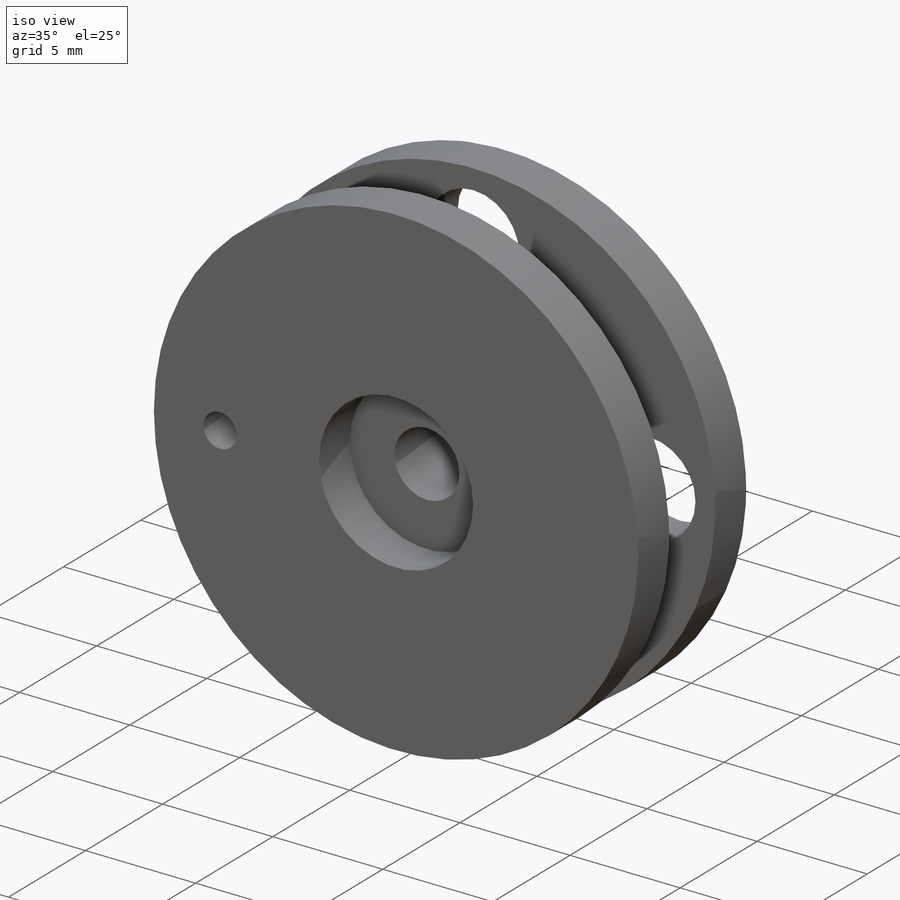
[diagram: iso view]
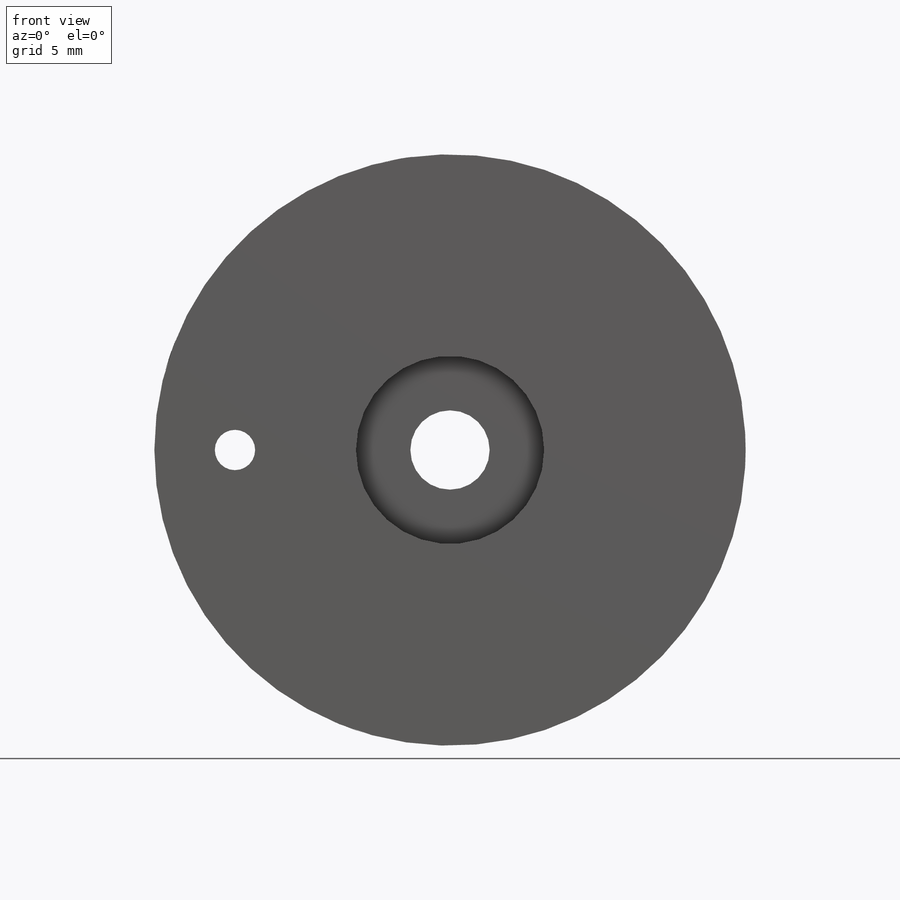
[diagram: front view]
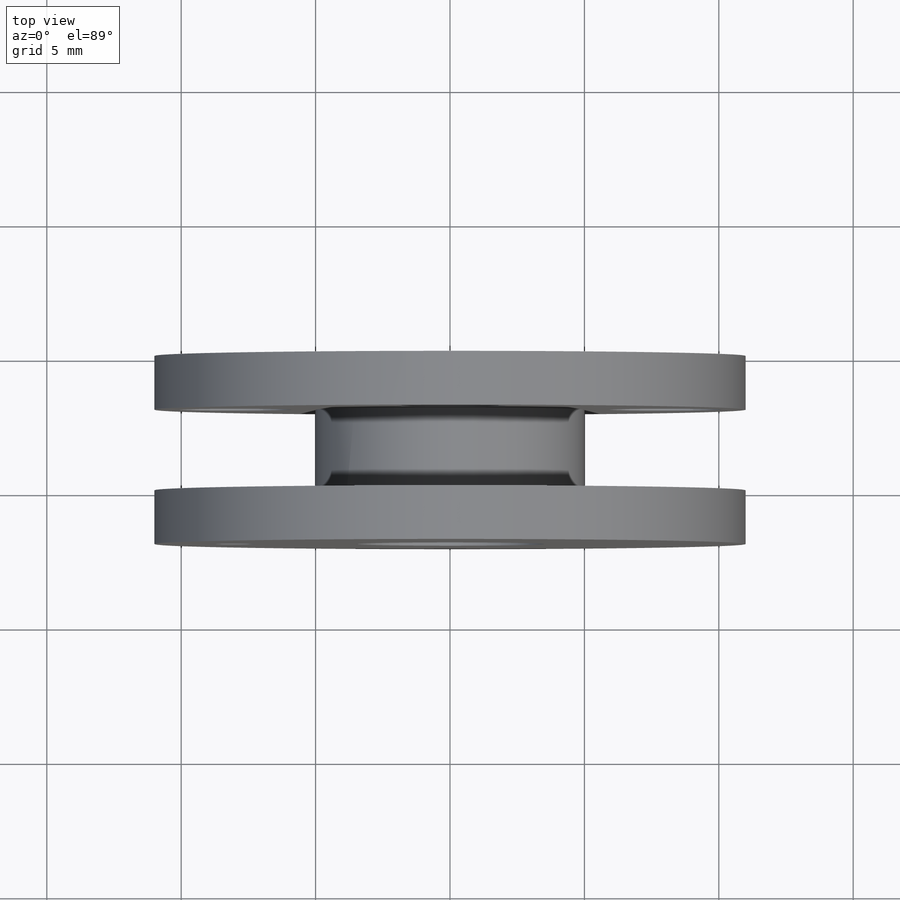
[diagram: top view]
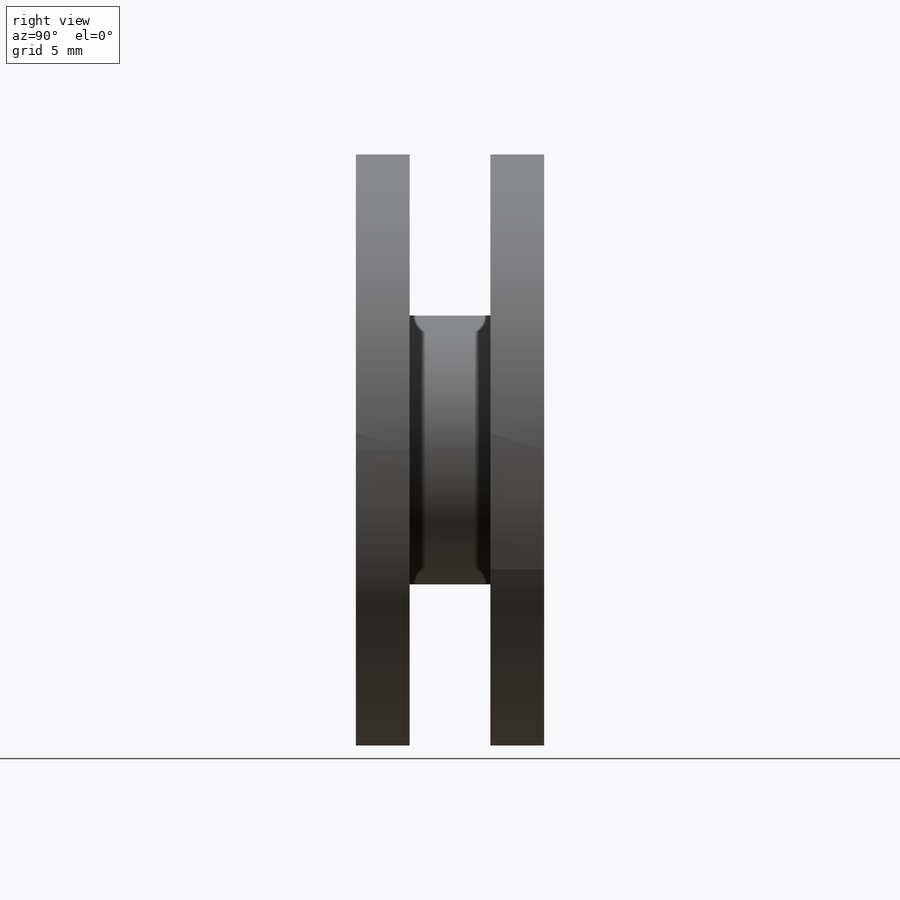
[diagram: right view]
SOLIDWORKS PART (.sldprt)
format: sldprt  version: not decoded by parser v0  size: 207,360 bytes
history: native  units: mm
features: sketch x3, extrude x3, material x1 + 1 further entry (+17 scaffold rows collapsed; 3 parser-record rows omitted)
feature tree (28):
  scaffold x17  (default folders/planes/origin — collapsed)
  material  "ABS"
  "RobotHandParameters"
  parser-record x3  (decoder bookkeeping rows leaked as tree rows — omitted from the tree; the rows remain in map.json)
  sketch  "Sketch1"  dims[c1.D1=4.2mm c1.D2=2.95mm c1.D3=22.0mm c1.D4=~14.555283mm c1.D5=~13.578694mm c2.D4=8.0mm c2.D5=4.0]
  extrude  "Bottom AX12 Pulley"  Depth=2mm
  sketch  "Sketch2"  dims[D1=10.0mm]
  extrude  "Main AX12 Pulley"  Depth=3mm
  sketch  "Sketch5"  dims[D1=22.0mm D2=7.0mm D3=1.5mm D4=8.0mm]
  extrude  "Top AX12 Pulley"  Depth=2mm
decode coverage: 6 of 6 modeling features carry decoded parameters; 1 rows unclassified (native names shown)
note: ~ marks probable driven/reference dimensions
note: suppression state not decoded; provenance and decode notes live in map.json
